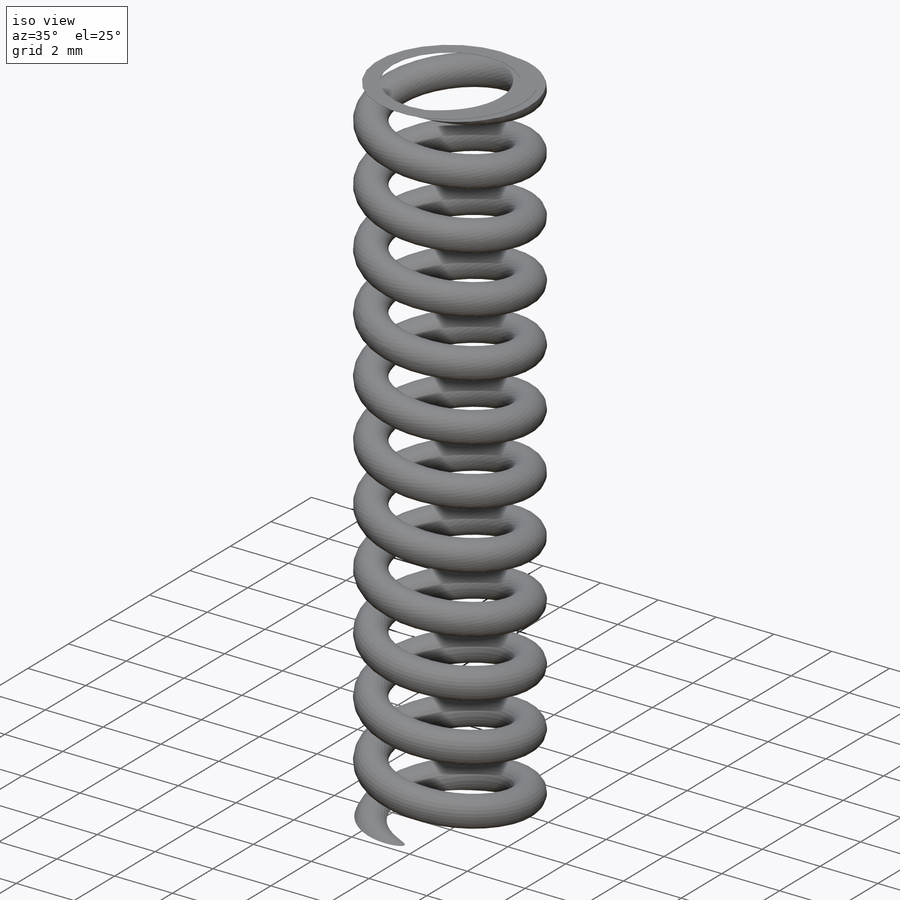
[diagram: iso view]
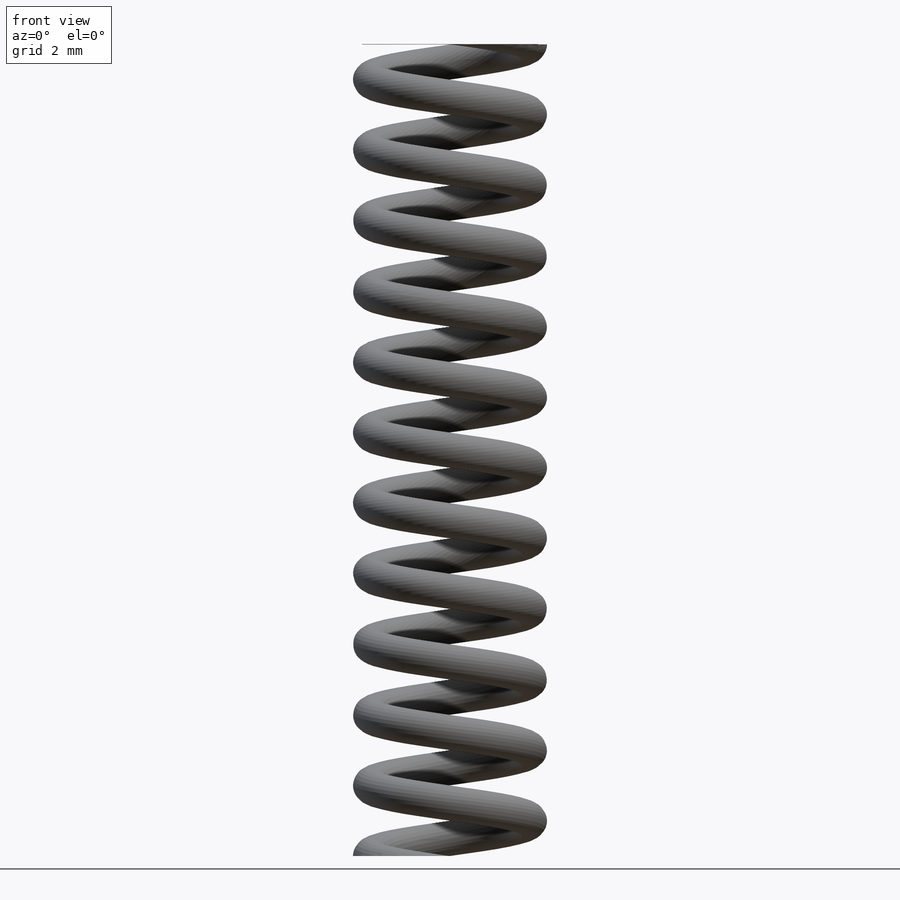
[diagram: front view]
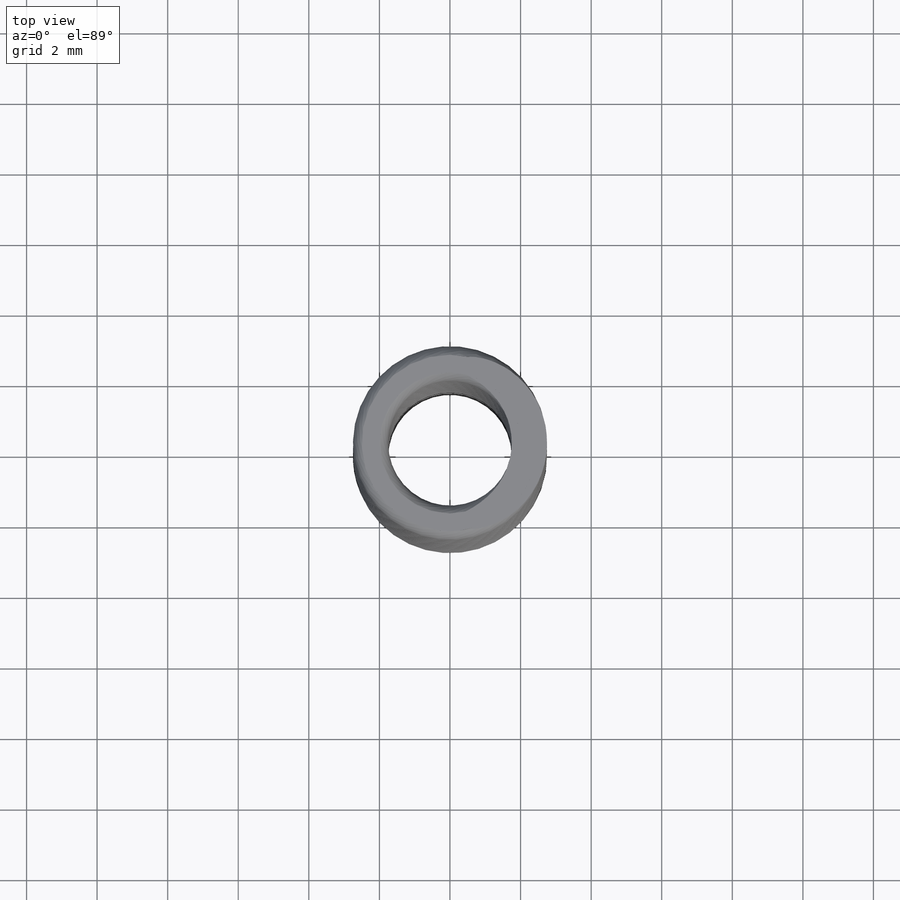
[diagram: top view]
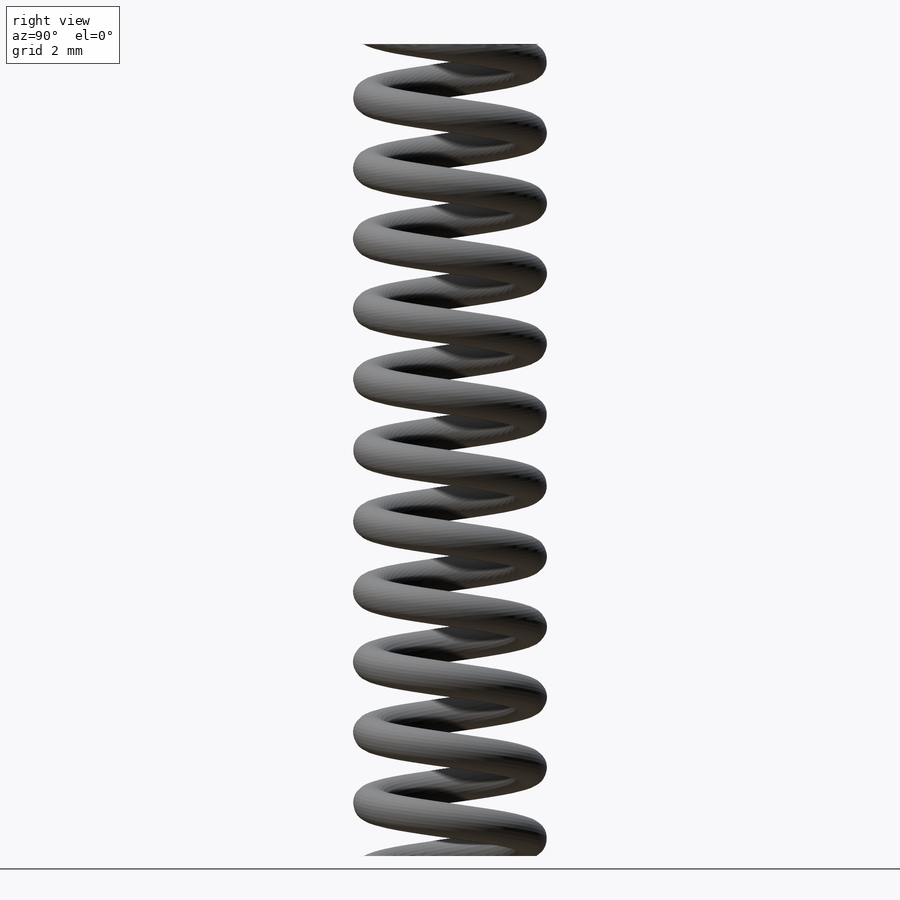
[diagram: right view]
SOLIDWORKS PART (.sldprt)
format: sldprt  version: not decoded by parser v0  size: 655,872 bytes
history: native  units: mm
features: sketch x4, plane x3, material x1, helix x1, sweep x1, cut_extrude x1, extrude x1 (+9 scaffold rows collapsed)
feature tree (21):
  scaffold x9  (default folders/planes/origin — collapsed)
  material  "AISI 1035 Acciaio (SS)"
  plane  "Piano frontale"
  plane  "Piano superiore"
  plane  "Piano destro"
  sketch  "Schizzo1"  dims[D1=1.0mm D2=2.25mm]
  sketch  "Schizzo4"
  helix  "Elica/Spirale1"  Pitch=28mm
  sweep  "Sweep1"
  sketch  "Schizzo5"  dims[D1=23.0mm D2=10.0mm D3=5.0mm D4=10.0mm]
  cut_extrude  "Taglio-Estrusione2"  [1 undecoded]
  sketch  "Schizzo6"  dims[D1=5.0mm D2=4.0mm]
  extrude  "Estrusione-Estrusione1"  Depth=0.01mm
decode coverage: 5 of 8 modeling features carry decoded parameters
note: 1 parameter value undecoded
note: suppression state not decoded; provenance and decode notes live in map.json
